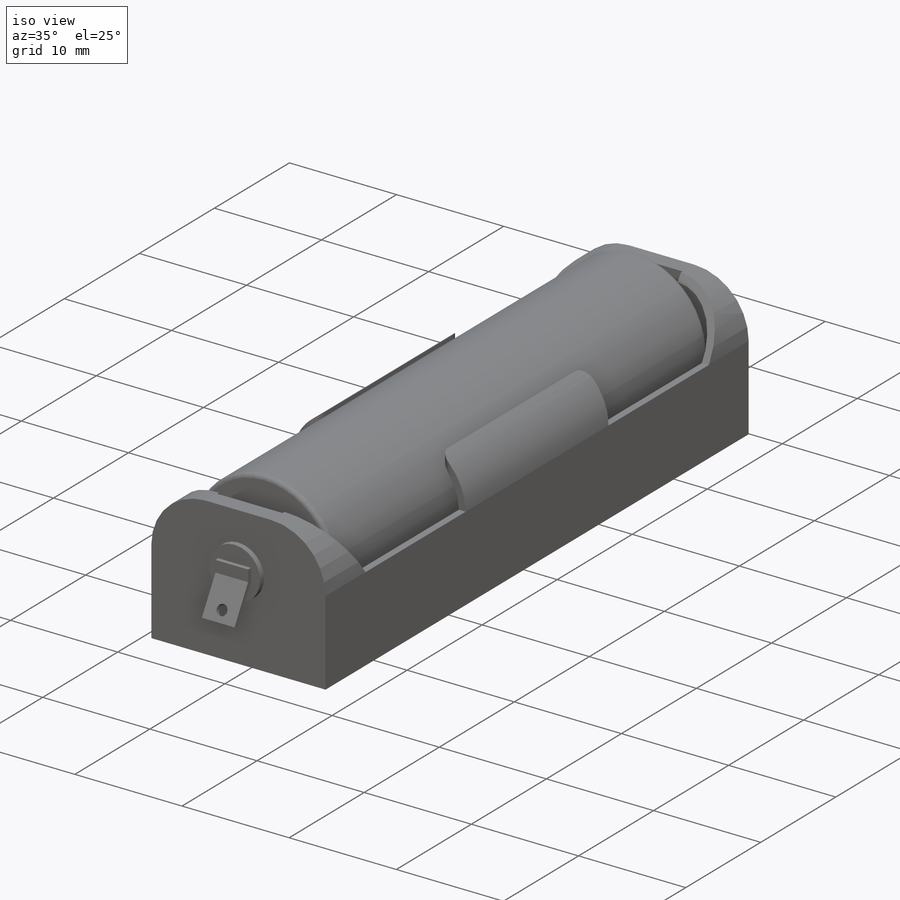
[diagram: iso view]
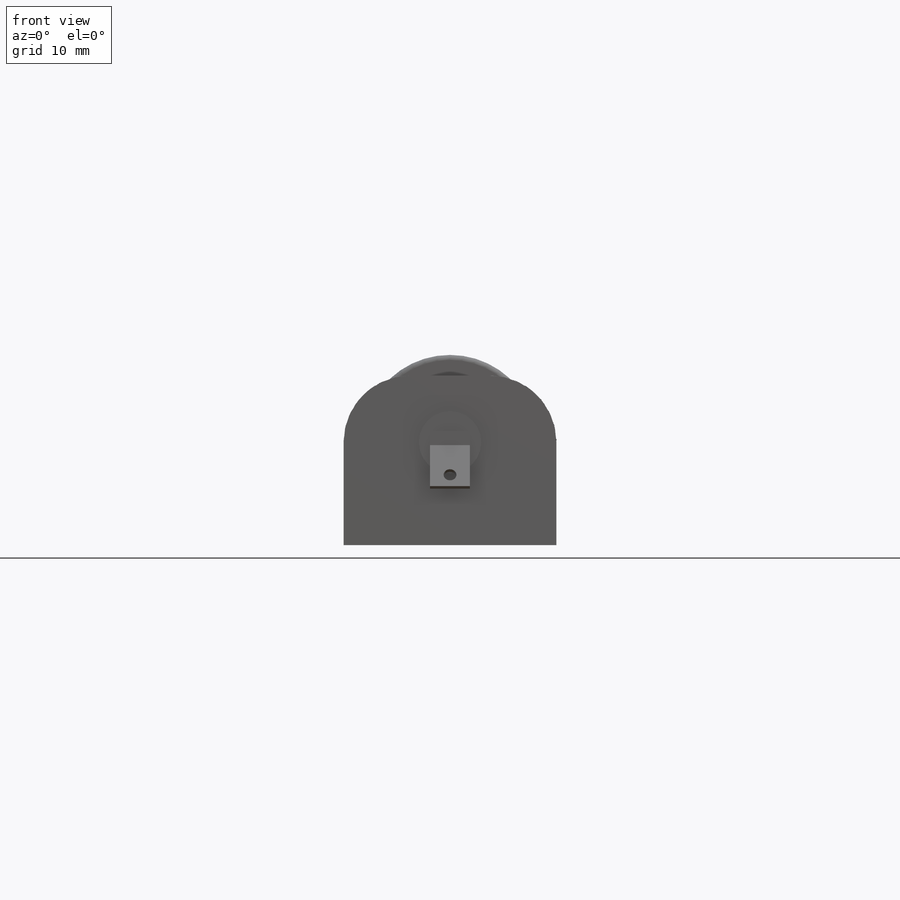
[diagram: front view]
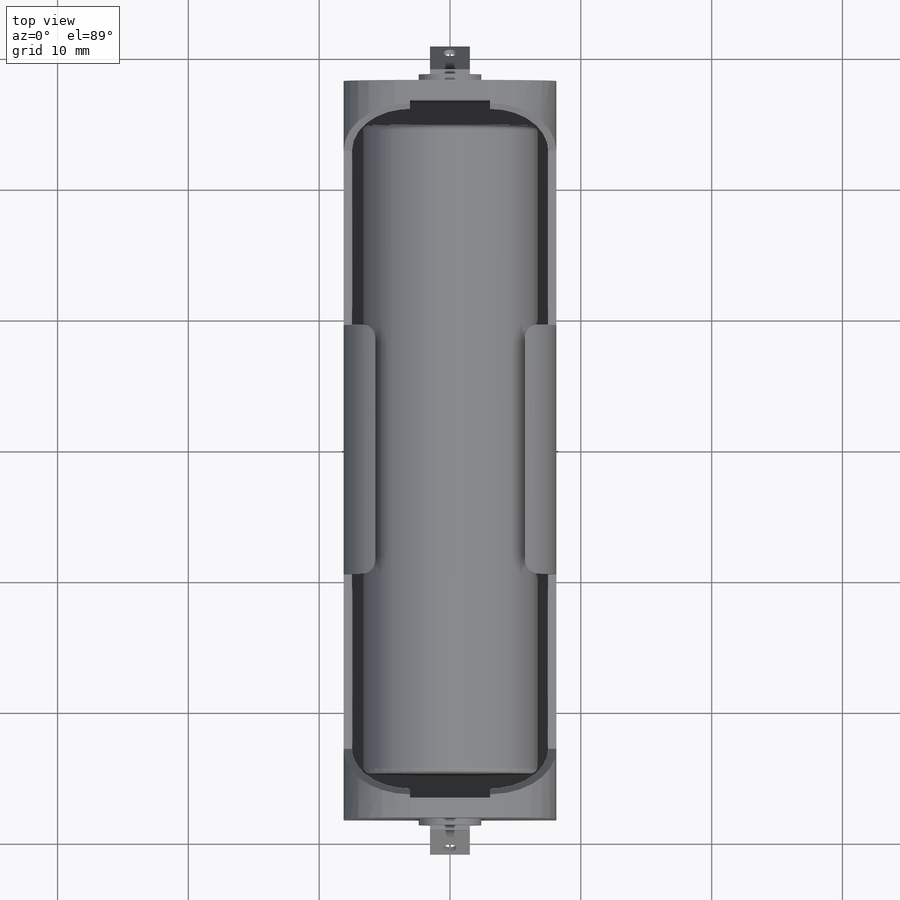
[diagram: top view]
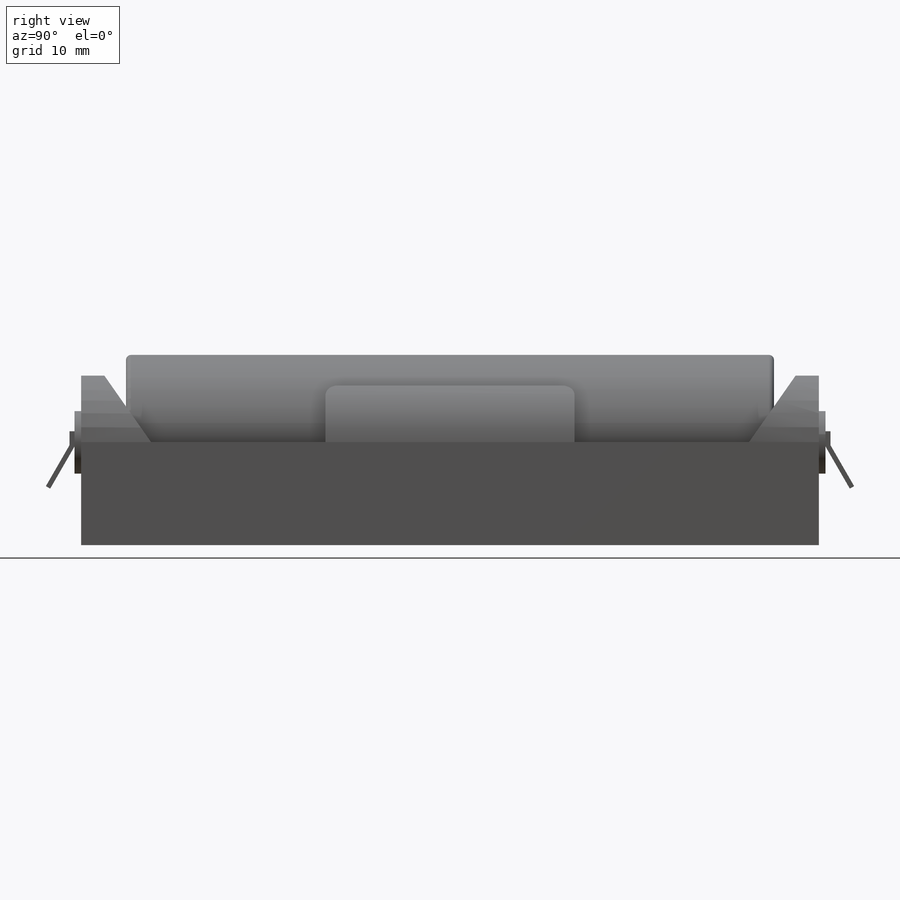
[diagram: right view]
SOLIDWORKS PART (.sldprt)
format: sldprt  version: not decoded by parser v0  size: 504,832 bytes
history: native  units: mm
features: sketch x8, extrude x4, cut_extrude x4, plane x3, fillet x2, material x1, shell x1, mirror x1 (+11 scaffold rows collapsed)
feature tree (35):
  scaffold x11  (default folders/planes/origin — collapsed)
  material  "Material <not specified>"
  plane  "Plane1"
  plane  "Plane2"
  plane  "Plane3"
  sketch  "Sketch1"  dims[D3=5.08mm D1=12.954mm D2=16.256mm]
  extrude  "Base-Extrude"  Depth=56.388mm
  shell  "Shell1"  Thickness=0.635mm
  sketch  "Sketch3"  dims[c1.D1=9.525mm c1.D2=22.86mm c1.D3=~7.646981mm c2.D3=125.0deg]
  cut_extrude  "Cut-Extrude1"  Depth=25.4mm
  sketch  "Sketch4"  dims[D1=11.43mm]
  cut_extrude  "Cut-Extrude2"  Depth=6.35mm
  sketch  "Sketch8"  dims[c1.D1=~2.136259mm c1.D2=~2.136259mm c1.D5=2.667mm c2.D1=45.085mm c2.D2=10.16mm c2.D3=5.08mm c2.D4=22.5425mm]
  cut_extrude  "Cut-Extrude3"  Depth=6.35mm
  fillet  "Fillet1"  Radius=1.016mm
  sketch  "Sketch7"
  extrude  "Boss-Extrude1"  Depth=49.53mm
  fillet  "Fillet4"  Radius=0.381mm
  sketch  "Sketch9"  dims[D1=4.7752mm]
  extrude  "Boss-Extrude2"  Depth=0.508mm
  sketch  "Sketch11"  dims[c1.D1=~3.636828mm c2.D1=30.0deg c2.D2=0.381mm c2.D3=0.381mm c2.D4=~3.717769mm c2.D5=0.381mm]
  extrude  "Boss-Extrude3"  Depth=3.048mm
  sketch  "Sketch12"
  cut_extrude  "Cut-Extrude4"  Depth=0.508mm
  mirror  "Mirror1"
decode coverage: 17 of 20 modeling features carry decoded parameters
note: ~ marks probable driven/reference dimensions
note: suppression state not decoded; provenance and decode notes live in map.json
